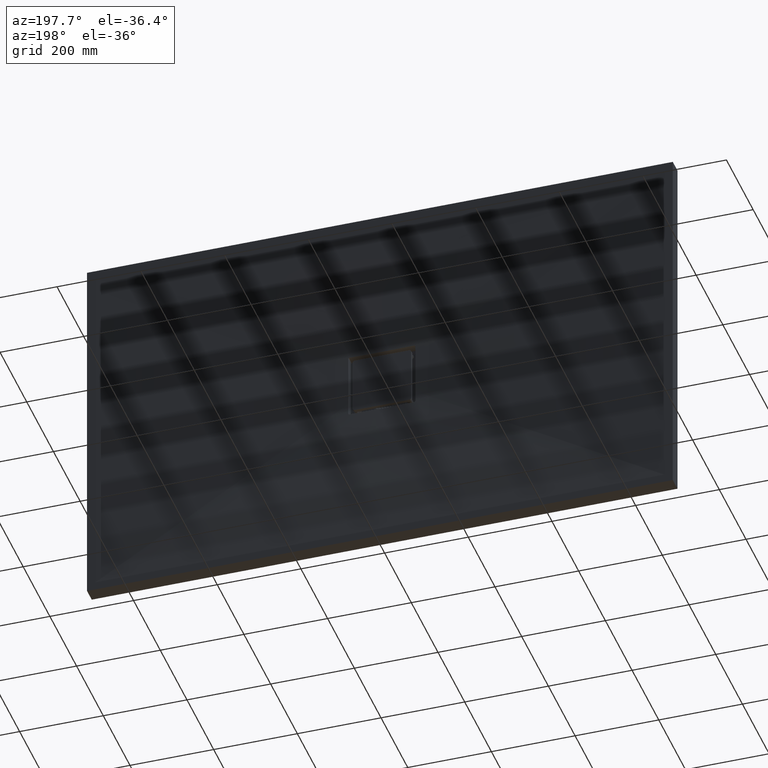
[diagram: clean part render]
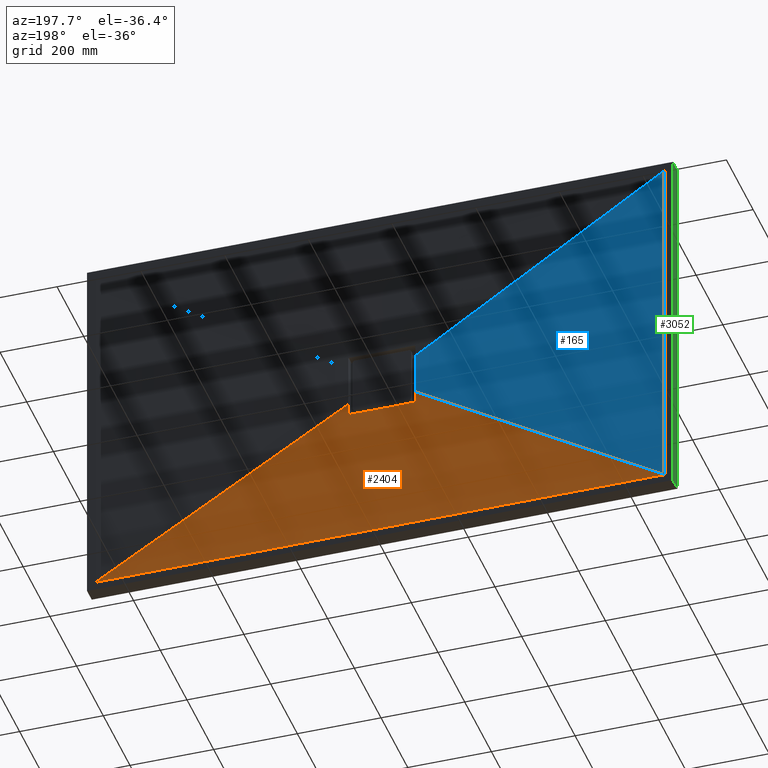
[diagram: same view with three faces highlighted in distinct colors, each labeled with its STEP entity id]
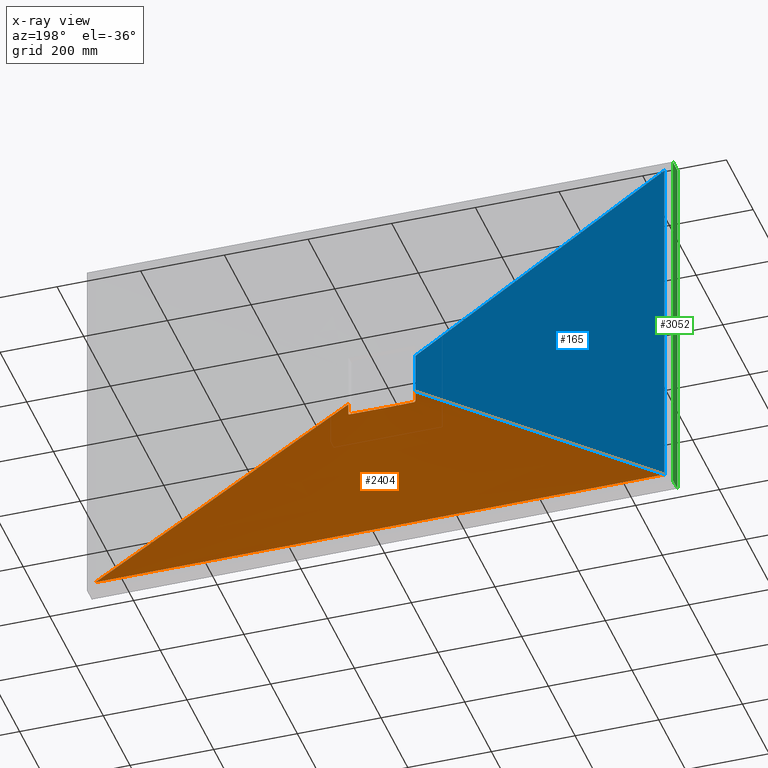
[diagram: x-ray of the same camera — body ghosted, the three highlighted faces saturated]
A machine part, auxiliary view with three faces highlighted in distinct colors.
The next image is the same camera in x-ray (body ghosted, the three faces saturated) — at least one of them is partly hidden behind the body in this view.
Their STEP definitions:

[orange] entity #2404 — the highlighted face is a freeform B-spline surface patch.
#47 = ORIENTED_EDGE ( 'NONE', *, *, #630, .T. ) ;
#60 = CARTESIAN_POINT ( 'NONE',  ( 679.9999999999997700, 35.00000000000002800, -429.9999999999998900 ) ) ;
#66 = CARTESIAN_POINT ( 'NONE',  ( 283.3333333333332000, 35.00000000000002800, -429.9999999999998300 ) ) ;
#79 = CARTESIAN_POINT ( 'NONE',  ( -79.48919422958657300, 20.84295492016255100, -79.02307756777966600 ) ) ;
#108 = CARTESIAN_POINT ( 'NONE',  ( -566.6666666666664000, 35.00000000000002800, -429.9999999999998900 ) ) ;
#113 = CARTESIAN_POINT ( 'NONE',  ( 679.9999999999997700, 35.00000000000002800, -429.9999999999998900 ) ) ;
#128 = CARTESIAN_POINT ( 'NONE',  ( -43.89000487333216700, 20.00000000000001800, -66.97251100088675500 ) ) ;
#139 = CARTESIAN_POINT ( 'NONE',  ( 141.6666666666674800, 35.00000000000002800, -429.9999999999997700 ) ) ;
#153 = CARTESIAN_POINT ( 'NONE',  ( -623.3333333333330300, 35.00000000000002800, -429.9999999999998900 ) ) ;
#166 = LINE ( 'NONE', #2088, #1132 ) ;
#206 = CARTESIAN_POINT ( 'NONE',  ( 566.6666666666664000, 35.00000000000002800, -429.9999999999998300 ) ) ;
#227 = CARTESIAN_POINT ( 'NONE',  ( -66.10973209239023200, 20.00000000000001800, -45.13801686234509000 ) ) ;
#281 = CARTESIAN_POINT ( 'NONE',  ( -80.00000000000008500, 20.81682806805024200, -77.66503442149991100 ) ) ;
#308 = B_SPLINE_CURVE_WITH_KNOTS ( 'NONE', 3,
 ( #1661, #1679, #1619, #1593 ),
 .UNSPECIFIED., .F., .F.,
 ( 4, 4 ),
 ( 0.0000000000000000000, 0.02691658761401903600 ),
 .UNSPECIFIED. ) ;
#340 = EDGE_LOOP ( 'NONE', ( #2229, #2402, #3000, #1957, #2922, #3139, #1953, #47 ) ) ;
#388 = CARTESIAN_POINT ( 'NONE',  ( 481.6666666666673700, 35.00000000000002800, -429.9999999999998900 ) ) ;
#437 = CARTESIAN_POINT ( 'NONE',  ( 46.65745748710925500, 20.00000000000001800, -65.06811537455669700 ) ) ;
#447 = CARTESIAN_POINT ( 'NONE',  ( -80.00000000000007100, 20.81287030221268400, -77.49999999999990100 ) ) ;
#449 = VECTOR ( 'NONE', #1660, 1000.000000000000000 ) ;
#459 = CARTESIAN_POINT ( 'NONE',  ( -79.15327080304696500, 20.84731717523449700, -79.38235719992643200 ) ) ;
#464 = B_SPLINE_CURVE_WITH_KNOTS ( 'NONE', 3,
 ( #1742, #1609, #1674, #1746, #1762, #1792, #1759, #1214, #1290, #1796, #1460, #1506, #1525, #1381 ),
 .UNSPECIFIED., .F., .F.,
 ( 4, 2, 2, 2, 2, 2, 4 ),
 ( 0.0000000000000000000, 0.01937632887573278700, 0.03875265775146554500, 0.07750531550293107700, 0.1162579732543966000, 0.1356343021301293600, 0.1550106310058621500 ),
 .UNSPECIFIED. ) ;
#486 = CARTESIAN_POINT ( 'NONE',  ( -80.00000000000007100, 20.59776308194662800, -68.53026881474983200 ) ) ;
#530 = CARTESIAN_POINT ( 'NONE',  ( -80.00000000000007100, 20.30335170747321500, -50.58823529411748900 ) ) ;
#553 = CARTESIAN_POINT ( 'NONE',  ( -79.87241578129460600, 20.83057128014282400, -78.30527190500328100 ) ) ;
#557 = CARTESIAN_POINT ( 'NONE',  ( 58.68366332307850500, 20.00000000000001800, -54.46160890534357400 ) ) ;
#584 = VERTEX_POINT ( 'NONE', #1197 ) ;
#616 = FACE_OUTER_BOUND ( 'NONE', #340, .T. ) ;
#630 = EDGE_CURVE ( 'NONE', #2658, #1859, #738, .T. ) ;
#641 = CARTESIAN_POINT ( 'NONE',  ( 18.15272978704030000, 20.00000000000001800, -77.99657177433128700 ) ) ;
#671 = CARTESIAN_POINT ( 'NONE',  ( -80.00000000000007100, 20.42740913172034600, -59.55969031890859400 ) ) ;
#738 = LINE ( 'NONE', #113, #449 ) ;
#811 = CARTESIAN_POINT ( 'NONE',  ( 538.3333333333339400, 35.00000000000002800, -429.9999999999998300 ) ) ;
#876 = CARTESIAN_POINT ( 'NONE',  ( -79.92041001741334600, 20.82737132807439900, -78.14661237938496200 ) ) ;
#947 = CARTESIAN_POINT ( 'NONE',  ( -56.66666666666664300, 35.00000000000002800, -429.9999999999998300 ) ) ;
#1020 = CARTESIAN_POINT ( 'NONE',  ( -51.83203333428831900, 20.00000000000001800, -61.02637379028252700 ) ) ;
#1077 = CARTESIAN_POINT ( 'NONE',  ( -198.3333333333332600, 35.00000000000002800, -429.9999999999998300 ) ) ;
#1100 = CARTESIAN_POINT ( 'NONE',  ( -651.6666666666664000, 35.00000000000002800, -429.9999999999998900 ) ) ;
#1117 = CARTESIAN_POINT ( 'NONE',  ( -28.33333333333243300, 35.00000000000002800, -429.9999999999997700 ) ) ;
#1132 = VECTOR ( 'NONE', #2108, 1000.000000000000100 ) ;
#1152 = CARTESIAN_POINT ( 'NONE',  ( -453.3333333333331400, 35.00000000000002800, -429.9999999999998300 ) ) ;
#1182 = CARTESIAN_POINT ( 'NONE',  ( 311.6666666666674200, 35.00000000000002800, -429.9999999999998300 ) ) ;
#1187 = CARTESIAN_POINT ( 'NONE',  ( -80.00000000000007100, 20.81287030221268400, -77.49999999999990100 ) ) ;
#1197 = CARTESIAN_POINT ( 'NONE',  ( 80.00000000000007100, 20.81287030221268400, -77.49999999999990100 ) ) ;
#1204 = CARTESIAN_POINT ( 'NONE',  ( 28.46261196971156000, 20.00000000000001800, -74.84839874186622000 ) ) ;
#1211 = CARTESIAN_POINT ( 'NONE',  ( -396.6666666666665200, 35.00000000000002800, -429.9999999999998300 ) ) ;
#1214 = CARTESIAN_POINT ( 'NONE',  ( 12.91782198656805400, 20.00000000949317400, -79.99999999999998600 ) ) ;
#1215 = CARTESIAN_POINT ( 'NONE',  ( -60.72100163076399300, 20.00000000000001800, -52.17125305750225600 ) ) ;
#1229 = B_SPLINE_CURVE_WITH_KNOTS ( 'NONE', 3,
 ( #3021, #281, #1548, #876, #553, #1905, #1899, #79, #1443, #459, #3210, #1259, #3166, #2405, #2006, #1542 ),
 .UNSPECIFIED., .F., .F.,
 ( 4, 2, 2, 2, 2, 2, 2, 4 ),
 ( 0.0000000000000000000, 0.0004882185418749784900, 0.0009764370837499569800, 0.001464655625624935600, 0.001952874167499914000, 0.002441092709374892300, 0.002929311251249871100, 0.003905748334999827900 ),
 .UNSPECIFIED. ) ;
#1244 = LINE ( 'NONE', #1824, #2042 ) ;
#1255 = CARTESIAN_POINT ( 'NONE',  ( -368.3333333333332000, 35.00000000000002800, -429.9999999999998300 ) ) ;
#1259 = CARTESIAN_POINT ( 'NONE',  ( -78.75452147228800500, 20.84909415750816900, -79.66867825235011900 ) ) ;
#1268 = EDGE_CURVE ( 'NONE', #1384, #2705, #464, .T. ) ;
#1290 = CARTESIAN_POINT ( 'NONE',  ( 25.83446700601050600, 20.14544468636011100, -79.99999999999985800 ) ) ;
#1381 = CARTESIAN_POINT ( 'NONE',  ( 77.50000000000056800, 20.84062390381880200, -79.99999999999984400 ) ) ;
#1383 = CARTESIAN_POINT ( 'NONE',  ( 80.00000000000007100, 20.30335170747321500, -50.58823529411748900 ) ) ;
#1384 = VERTEX_POINT ( 'NONE', #1915 ) ;
#1396 = CARTESIAN_POINT ( 'NONE',  ( 56.66666666666664300, 35.00000000000002800, -429.9999999999997700 ) ) ;
#1401 = CARTESIAN_POINT ( 'NONE',  ( 25.09192591554843000, 20.00000000000001800, -76.04855068387783500 ) ) ;
#1409 = EDGE_CURVE ( 'NONE', #1528, #1859, #1244, .T. ) ;
#1443 = CARTESIAN_POINT ( 'NONE',  ( -79.38371044993434100, 20.84470777932662200, -79.15172876621149100 ) ) ;
#1460 = CARTESIAN_POINT ( 'NONE',  ( 51.66731476949390600, 20.48706198492978500, -79.99999999999982900 ) ) ;
#1463 = CARTESIAN_POINT ( 'NONE',  ( 113.3333333333332900, 35.00000000000002800, -429.9999999999997700 ) ) ;
#1474 = CARTESIAN_POINT ( 'NONE',  ( -679.9999999999997700, 35.00000000000002800, -429.9999999999998900 ) ) ;
#1477 = CARTESIAN_POINT ( 'NONE',  ( -7.343945603555113200, 20.00000000000001800, -79.74599369370716300 ) ) ;
#1506 = CARTESIAN_POINT ( 'NONE',  ( 64.58363601906127400, 20.66541311807115000, -79.99999999999982900 ) ) ;
#1525 = CARTESIAN_POINT ( 'NONE',  ( 71.04180104150121600, 20.75426549895516000, -79.99999999999995700 ) ) ;
#1528 = VERTEX_POINT ( 'NONE', #1848 ) ;
#1542 = CARTESIAN_POINT ( 'NONE',  ( -77.49999999999968700, 20.84062390381880200, -79.99999999999984400 ) ) ;
#1548 = CARTESIAN_POINT ( 'NONE',  ( -79.98381852767472800, 20.82051468157961000, -77.82731902350575100 ) ) ;
#1593 = CARTESIAN_POINT ( 'NONE',  ( 80.00000000000007100, 20.30335170747321500, -50.58823529411748900 ) ) ;
#1609 = CARTESIAN_POINT ( 'NONE',  ( -71.04180089131530500, 20.75426549694690000, -79.99999999999988600 ) ) ;
#1619 = CARTESIAN_POINT ( 'NONE',  ( 80.00000000000007100, 20.42740913172034600, -59.55969031890860800 ) ) ;
#1660 = DIRECTION ( 'NONE',  ( -1.000000000000000000, 0.0000000000000000000, 0.0000000000000000000 ) ) ;
#1661 = CARTESIAN_POINT ( 'NONE',  ( 80.00000000000007100, 20.81287030221268400, -77.49999999999990100 ) ) ;
#1674 = CARTESIAN_POINT ( 'NONE',  ( -64.58363571918916100, 20.66541311393526600, -79.99999999999985800 ) ) ;
#1679 = CARTESIAN_POINT ( 'NONE',  ( 80.00000000000007100, 20.59776308194662100, -68.53026881474981700 ) ) ;
#1706 = CARTESIAN_POINT ( 'NONE',  ( -311.6666666666665200, 35.00000000000002800, -429.9999999999998300 ) ) ;
#1720 = CARTESIAN_POINT ( 'NONE',  ( -46.65745748710925500, 20.00000000000001800, -65.06811537455669700 ) ) ;
#1728 = CARTESIAN_POINT ( 'NONE',  ( 79.93368845746245200, 20.82781323709821200, -78.15807855619458200 ) ) ;
#1737 = B_SPLINE_SURFACE_WITH_KNOTS ( 'NONE', 3, 1, ( 
 ( #3060, #2592 ),
 ( #1100, #227 ),
 ( #153, #1738 ),
 ( #108, #1215 ),
 ( #1897, #2049 ),
 ( #2536, #2552 ),
 ( #1152, #1020 ),
 ( #1211, #1720 ),
 ( #1255, #128 ),
 ( #1706, #2853 ),
 ( #1917, #2790 ),
 ( #1910, #2727 ),
 ( #1077, #2813 ),
 ( #2231, #2545 ),
 ( #1954, #2883 ),
 ( #947, #1477 ),
 ( #1117, #2912 ),
 ( #2976, #2393 ),
 ( #1396, #3016 ),
 ( #1463, #3041 ),
 ( #139, #641 ),
 ( #2807, #1401 ),
 ( #3085, #1204 ),
 ( #66, #2372 ),
 ( #1182, #2528 ),
 ( #2439, #3011 ),
 ( #3186, #437 ),
 ( #3127, #3157 ),
 ( #388, #1946 ),
 ( #811, #557 ),
 ( #206, #2802 ),
 ( #3197, #1941 ),
 ( #2207, #1888 ),
 ( #1929, #3170 ) ),
 .UNSPECIFIED., .F., .F., .F.,
 ( 4, 2, 2, 2, 2, 2, 2, 2, 2, 2, 2, 2, 2, 2, 2, 2, 4 ),
 ( 2, 2 ),
 ( 0.0000000000000000000, 0.06250000000000009700, 0.1250000000000001100, 0.1875000000000001100, 0.2500000000000001100, 0.3125000000000001700, 0.3750000000000002200, 0.4375000000000002200, 0.5000000000000000000, 0.5625000000000002200, 0.6250000000000002200, 0.6875000000000002200, 0.7500000000000001100, 0.8125000000000001100, 0.8750000000000001100, 0.9375000000000001100, 1.000000000000000000 ),
 ( 0.0000000000000000000, 1.000000000000000000 ),
 .UNSPECIFIED. ) ;
#1738 = CARTESIAN_POINT ( 'NONE',  ( -64.43395709204224900, 20.00000000000001800, -47.50941862508928200 ) ) ;
#1742 = CARTESIAN_POINT ( 'NONE',  ( -77.49999999999968700, 20.84062390381880200, -79.99999999999984400 ) ) ;
#1746 = CARTESIAN_POINT ( 'NONE',  ( -51.66731417037632900, 20.48706197665226700, -79.99999999999984400 ) ) ;
#1750 = CARTESIAN_POINT ( 'NONE',  ( 80.00000000000007100, 20.81287030221268400, -77.49999999999990100 ) ) ;
#1757 = EDGE_CURVE ( 'NONE', #2598, #1384, #1229, .T. ) ;
#1759 = CARTESIAN_POINT ( 'NONE',  ( -12.91781925574583800, 19.99999999050686100, -79.99999999999998600 ) ) ;
#1762 = CARTESIAN_POINT ( 'NONE',  ( -45.20916125379663000, 20.39730730491634600, -79.99999999999985800 ) ) ;
#1792 = CARTESIAN_POINT ( 'NONE',  ( -25.83446584992425300, 20.14544467251844800, -79.99999999999987200 ) ) ;
#1796 = CARTESIAN_POINT ( 'NONE',  ( 45.20916202468496400, 20.39730731553102000, -79.99999999999987200 ) ) ;
#1824 = CARTESIAN_POINT ( 'NONE',  ( -373.8077369458299000, 27.49999999999996800, -236.3784218922158100 ) ) ;
#1825 = CARTESIAN_POINT ( 'NONE',  ( 80.00000000000005700, 20.82078581240967100, -77.83006794738592800 ) ) ;
#1848 = CARTESIAN_POINT ( 'NONE',  ( -80.00000000000007100, 20.30335170747321500, -50.58823529411748900 ) ) ;
#1856 = CARTESIAN_POINT ( 'NONE',  ( 79.74650520150136400, 20.83626693639848400, -78.60891438044446000 ) ) ;
#1859 = VERTEX_POINT ( 'NONE', #1474 ) ;
#1886 = CARTESIAN_POINT ( 'NONE',  ( 77.50000000000056800, 20.84062390381880200, -79.99999999999984400 ) ) ;
#1888 = CARTESIAN_POINT ( 'NONE',  ( 66.10973209239112700, 20.00000000000001800, -45.13801686234509000 ) ) ;
#1897 = CARTESIAN_POINT ( 'NONE',  ( -538.3333333333331400, 35.00000000000002800, -429.9999999999998900 ) ) ;
#1899 = CARTESIAN_POINT ( 'NONE',  ( -79.67039703718408800, 20.83872582582131700, -78.75141346543685500 ) ) ;
#1905 = CARTESIAN_POINT ( 'NONE',  ( -79.74709165877790400, 20.83624952186478700, -78.60788020894594300 ) ) ;
#1910 = CARTESIAN_POINT ( 'NONE',  ( -226.6666666666665700, 35.00000000000002800, -429.9999999999998300 ) ) ;
#1915 = CARTESIAN_POINT ( 'NONE',  ( -77.49999999999968700, 20.84062390381880200, -79.99999999999984400 ) ) ;
#1916 = CARTESIAN_POINT ( 'NONE',  ( 79.66880160433520100, 20.83877514461999800, -78.75430790600145800 ) ) ;
#1917 = CARTESIAN_POINT ( 'NONE',  ( -283.3333333333332000, 35.00000000000002800, -429.9999999999998300 ) ) ;
#1920 = CARTESIAN_POINT ( 'NONE',  ( 79.15192373540325800, 20.84732840818741200, -79.38353922780618200 ) ) ;
#1929 = CARTESIAN_POINT ( 'NONE',  ( 679.9999999999997700, 35.00000000000002800, -429.9999999999998900 ) ) ;
#1941 = CARTESIAN_POINT ( 'NONE',  ( 64.43395709204224900, 20.00000000000001800, -47.50941862508928200 ) ) ;
#1946 = CARTESIAN_POINT ( 'NONE',  ( 54.23925067209722800, 20.00000000000001800, -58.88924241408033600 ) ) ;
#1953 = ORIENTED_EDGE ( 'NONE', *, *, #2991, .F. ) ;
#1954 = CARTESIAN_POINT ( 'NONE',  ( -113.3333333333332900, 35.00000000000002800, -429.9999999999998300 ) ) ;
#1957 = ORIENTED_EDGE ( 'NONE', *, *, #1268, .T. ) ;
#2006 = CARTESIAN_POINT ( 'NONE',  ( -77.83013657916528400, 20.84503845786817100, -79.99999999999984400 ) ) ;
#2021 = CARTESIAN_POINT ( 'NONE',  ( 79.38252454324180000, 20.84472518470886400, -79.15307997216284300 ) ) ;
#2026 = VERTEX_POINT ( 'NONE', #1383 ) ;
#2039 = CARTESIAN_POINT ( 'NONE',  ( 77.66506747637450300, 20.84283116996933700, -79.99999999999982900 ) ) ;
#2042 = VECTOR ( 'NONE', #2400, 1000.000000000000100 ) ;
#2049 = CARTESIAN_POINT ( 'NONE',  ( -58.68366332307761700, 20.00000000000001800, -54.46160890534357400 ) ) ;
#2088 = CARTESIAN_POINT ( 'NONE',  ( 373.8077369458299000, 27.49999999999996800, -236.3784218922158100 ) ) ;
#2108 = DIRECTION ( 'NONE',  ( -0.8450123593337416400, -0.02069808241327720700, 0.5343460507551606200 ) ) ;
#2132 = CARTESIAN_POINT ( 'NONE',  ( 79.48601169161703700, 20.84301679404178400, -79.02733306216583700 ) ) ;
#2177 = CARTESIAN_POINT ( 'NONE',  ( 79.02328178537072700, 20.84822255075896200, -79.48903933094345600 ) ) ;
#2207 = CARTESIAN_POINT ( 'NONE',  ( 651.6666666666673100, 35.00000000000002800, -429.9999999999998900 ) ) ;
#2212 = CARTESIAN_POINT ( 'NONE',  ( 78.75160487578435200, 20.84909531358593400, -79.67028802065416900 ) ) ;
#2229 = ORIENTED_EDGE ( 'NONE', *, *, #1409, .F. ) ;
#2231 = CARTESIAN_POINT ( 'NONE',  ( -141.6666666666666000, 35.00000000000002800, -429.9999999999998300 ) ) ;
#2234 = CARTESIAN_POINT ( 'NONE',  ( 78.30542434564283400, 20.84818129650704000, -79.87236544511762300 ) ) ;
#2247 = CARTESIAN_POINT ( 'NONE',  ( 78.60806140050850400, 20.84909084585775600, -79.74700380828466000 ) ) ;
#2282 = CARTESIAN_POINT ( 'NONE',  ( 78.14673507595084300, 20.84726584615351900, -79.92037932601780900 ) ) ;
#2299 = CARTESIAN_POINT ( 'NONE',  ( 77.50000000000056800, 20.84062390381880200, -79.99999999999984400 ) ) ;
#2318 = CARTESIAN_POINT ( 'NONE',  ( 77.82738316521566400, 20.84459219355479200, -79.98381211113337500 ) ) ;
#2372 = CARTESIAN_POINT ( 'NONE',  ( 34.92978578071692700, 20.00000000000001800, -72.05770701092984600 ) ) ;
#2393 = CARTESIAN_POINT ( 'NONE',  ( 3.672054543338632000, 20.00000000000001800, -79.99999999999995700 ) ) ;
#2400 = DIRECTION ( 'NONE',  ( -0.8450123593337419700, 0.02069808241327719000, -0.5343460507551600600 ) ) ;
#2402 = ORIENTED_EDGE ( 'NONE', *, *, #3253, .T. ) ;
#2404 = ADVANCED_FACE ( 'NONE', ( #616 ), #1737, .F. ) ;
#2405 = CARTESIAN_POINT ( 'NONE',  ( -78.15821044358027300, 20.84774660378795400, -79.93365907988736300 ) ) ;
#2439 = CARTESIAN_POINT ( 'NONE',  ( 368.3333333333340500, 35.00000000000002800, -429.9999999999998300 ) ) ;
#2476 = B_SPLINE_CURVE_WITH_KNOTS ( 'NONE', 3,
 ( #2299, #2039, #2318, #2282, #2234, #2247, #2212, #2177, #1920, #2021, #2132, #1916, #1856, #1728, #1825, #1750 ),
 .UNSPECIFIED., .F., .F.,
 ( 4, 2, 2, 2, 2, 2, 2, 4 ),
 ( 0.0000000000000000000, 0.0004882184869465692800, 0.0009764369738931385700, 0.001464655460839707800, 0.001952873947786277100, 0.002441092434732846700, 0.002929310921679415600, 0.003905747895572593300 ),
 .UNSPECIFIED. ) ;
#2528 = CARTESIAN_POINT ( 'NONE',  ( 38.02617390689455600, 20.00000000000001800, -70.46743826440449300 ) ) ;
#2536 = CARTESIAN_POINT ( 'NONE',  ( -481.6666666666664600, 35.00000000000002800, -429.9999999999998300 ) ) ;
#2545 = CARTESIAN_POINT ( 'NONE',  ( -18.15272978703852400, 20.00000000000001800, -77.99657177433128700 ) ) ;
#2552 = CARTESIAN_POINT ( 'NONE',  ( -54.23925067209722800, 20.00000000000001800, -58.88924241408033600 ) ) ;
#2592 = CARTESIAN_POINT ( 'NONE',  ( -67.61547389165923500, 20.00000000000001800, -42.75684378443167300 ) ) ;
#2598 = VERTEX_POINT ( 'NONE', #1187 ) ;
#2658 = VERTEX_POINT ( 'NONE', #60 ) ;
#2705 = VERTEX_POINT ( 'NONE', #1886 ) ;
#2727 = CARTESIAN_POINT ( 'NONE',  ( -28.46261196970978300, 20.00000000000001800, -74.84839874186610600 ) ) ;
#2790 = CARTESIAN_POINT ( 'NONE',  ( -34.92978578071515000, 20.00000000000001800, -72.05770701092984600 ) ) ;
#2802 = CARTESIAN_POINT ( 'NONE',  ( 60.72100163076399300, 20.00000000000001800, -52.17125305750225600 ) ) ;
#2807 = CARTESIAN_POINT ( 'NONE',  ( 198.3333333333341400, 35.00000000000002800, -429.9999999999998300 ) ) ;
#2813 = CARTESIAN_POINT ( 'NONE',  ( -25.09192591554843000, 20.00000000000001800, -76.04855068387783500 ) ) ;
#2849 = B_SPLINE_CURVE_WITH_KNOTS ( 'NONE', 3,
 ( #530, #671, #486, #447 ),
 .UNSPECIFIED., .F., .F.,
 ( 4, 4 ),
 ( 0.0000000000000000000, 0.02691658761401900800 ),
 .UNSPECIFIED. ) ;
#2853 = CARTESIAN_POINT ( 'NONE',  ( -38.02617390689455600, 20.00000000000001800, -70.46743826440449300 ) ) ;
#2883 = CARTESIAN_POINT ( 'NONE',  ( -14.58443099144091100, 20.00000000000001800, -78.74421515184882000 ) ) ;
#2912 = CARTESIAN_POINT ( 'NONE',  ( -3.672054543336855700, 20.00000000000001800, -79.99999999999995700 ) ) ;
#2922 = ORIENTED_EDGE ( 'NONE', *, *, #3189, .T. ) ;
#2976 = CARTESIAN_POINT ( 'NONE',  ( 28.33333333333421000, 35.00000000000002800, -429.9999999999997700 ) ) ;
#2991 = EDGE_CURVE ( 'NONE', #2658, #2026, #166, .T. ) ;
#3000 = ORIENTED_EDGE ( 'NONE', *, *, #1757, .T. ) ;
#3011 = CARTESIAN_POINT ( 'NONE',  ( 43.89000487333305500, 20.00000000000001800, -66.97251100088675500 ) ) ;
#3016 = CARTESIAN_POINT ( 'NONE',  ( 7.343945603555113200, 20.00000000000001800, -79.74599369370716300 ) ) ;
#3021 = CARTESIAN_POINT ( 'NONE',  ( -80.00000000000007100, 20.81287030221268400, -77.49999999999990100 ) ) ;
#3041 = CARTESIAN_POINT ( 'NONE',  ( 14.58443099144091100, 20.00000000000001800, -78.74421515184882000 ) ) ;
#3060 = CARTESIAN_POINT ( 'NONE',  ( -679.9999999999997700, 35.00000000000002800, -429.9999999999998900 ) ) ;
#3066 = EDGE_CURVE ( 'NONE', #584, #2026, #308, .T. ) ;
#3085 = CARTESIAN_POINT ( 'NONE',  ( 226.6666666666665700, 35.00000000000002800, -429.9999999999998300 ) ) ;
#3127 = CARTESIAN_POINT ( 'NONE',  ( 453.3333333333331400, 35.00000000000002800, -429.9999999999998300 ) ) ;
#3139 = ORIENTED_EDGE ( 'NONE', *, *, #3066, .T. ) ;
#3157 = CARTESIAN_POINT ( 'NONE',  ( 51.83203333428920700, 20.00000000000001800, -61.02637379028252700 ) ) ;
#3166 = CARTESIAN_POINT ( 'NONE',  ( -78.60909792968804800, 20.84909004819772700, -79.74641629237545700 ) ) ;
#3170 = CARTESIAN_POINT ( 'NONE',  ( 67.61547389166011600, 20.00000000000001800, -42.75684378443167300 ) ) ;
#3186 = CARTESIAN_POINT ( 'NONE',  ( 396.6666666666665200, 35.00000000000002800, -429.9999999999998300 ) ) ;
#3189 = EDGE_CURVE ( 'NONE', #2705, #584, #2476, .T. ) ;
#3197 = CARTESIAN_POINT ( 'NONE',  ( 623.3333333333330300, 35.00000000000002800, -429.9999999999998900 ) ) ;
#3210 = CARTESIAN_POINT ( 'NONE',  ( -79.02753233121907800, 20.84820046400538000, -79.48585862128406600 ) ) ;
#3253 = EDGE_CURVE ( 'NONE', #1528, #2598, #2849, .T. ) ;

[blue] entity #165 — the highlighted face is a freeform B-spline surface patch.
#5 = CARTESIAN_POINT ( 'NONE',  ( -679.9999999999997700, 35.00000000000002800, -250.8333333333381200 ) ) ;
#17 = CARTESIAN_POINT ( 'NONE',  ( -679.9999999999997700, 35.00000000000002800, 179.1666666666606000 ) ) ;
#131 = CARTESIAN_POINT ( 'NONE',  ( -67.61547389165923500, 20.00000000000001800, -42.75684378443167300 ) ) ;
#162 = CARTESIAN_POINT ( 'NONE',  ( -80.00000000000007100, 20.30335170747321500, 50.58823529411782300 ) ) ;
#165 = ADVANCED_FACE ( 'NONE', ( #1272 ), #505, .F. ) ;
#171 = VERTEX_POINT ( 'NONE', #1342 ) ;
#190 = ORIENTED_EDGE ( 'NONE', *, *, #1627, .T. ) ;
#213 = DIRECTION ( 'NONE',  ( 0.8450123593337419700, -0.02069808241327719000, -0.5343460507551599500 ) ) ;
#274 = CARTESIAN_POINT ( 'NONE',  ( -679.9999999999997700, 35.00000000000002800, -71.66666666667376300 ) ) ;
#286 = CARTESIAN_POINT ( 'NONE',  ( -79.71889910320140900, 20.00000000000001800, 7.723793770695763800 ) ) ;
#316 = CARTESIAN_POINT ( 'NONE',  ( -679.9999999999997700, 35.00000000000002800, 143.3333333333268600 ) ) ;
#321 = CARTESIAN_POINT ( 'NONE',  ( -78.61190927029682000, 20.00000000000001800, 15.32734762825271900 ) ) ;
#325 = CARTESIAN_POINT ( 'NONE',  ( -679.9999999999997700, 35.00000000000002800, 71.66666666665955200 ) ) ;
#353 = CARTESIAN_POINT ( 'NONE',  ( -373.8077369458299000, 27.49999999999996800, 236.3784218922160400 ) ) ;
#359 = CARTESIAN_POINT ( 'NONE',  ( -679.9999999999997700, 35.00000000000002800, -429.9999999999998900 ) ) ;
#377 = CARTESIAN_POINT ( 'NONE',  ( -79.71889910320140900, 20.00000000000001800, -7.723793770695541700 ) ) ;
#460 = CARTESIAN_POINT ( 'NONE',  ( -80.00000000000007100, 20.00000000000001800, -3.862001966524752900 ) ) ;
#482 = CARTESIAN_POINT ( 'NONE',  ( -78.61190927029682000, 20.00000000000001800, -15.32734762825238700 ) ) ;
#505 = B_SPLINE_SURFACE_WITH_KNOTS ( 'NONE', 3, 1, ( 
 ( #1076, #508 ),
 ( #952, #1027 ),
 ( #591, #1308 ),
 ( #873, #915 ),
 ( #1459, #1616 ),
 ( #17, #1645 ),
 ( #316, #321 ),
 ( #325, #286 ),
 ( #762, #1249 ),
 ( #1105, #460 ),
 ( #274, #377 ),
 ( #517, #482 ),
 ( #1551, #743 ),
 ( #5, #1352 ),
 ( #1662, #1621 ),
 ( #1467, #1657 ),
 ( #1536, #583 ),
 ( #1126, #131 ) ),
 .UNSPECIFIED., .F., .F., .F.,
 ( 4, 2, 2, 2, 2, 2, 2, 2, 4 ),
 ( 2, 2 ),
 ( 0.0000000000000000000, 0.1250000000000001100, 0.2500000000000001100, 0.3750000000000001100, 0.5000000000000000000, 0.6250000000000001100, 0.7500000000000001100, 0.8750000000000001100, 1.000000000000000000 ),
 ( 0.0000000000000000000, 1.000000000000000000 ),
 .UNSPECIFIED. ) ;
#508 = CARTESIAN_POINT ( 'NONE',  ( -67.61547389165923500, 20.00000000000001800, 42.75684378443189400 ) ) ;
#509 = VECTOR ( 'NONE', #1523, 1000.000000000000000 ) ;
#517 = CARTESIAN_POINT ( 'NONE',  ( -679.9999999999997700, 35.00000000000002800, -143.3333333333397400 ) ) ;
#583 = CARTESIAN_POINT ( 'NONE',  ( -69.51979440249900200, 20.00000000000001800, -39.74536018589414300 ) ) ;
#591 = CARTESIAN_POINT ( 'NONE',  ( -679.9999999999997700, 35.00000000000002800, 358.3333333333311500 ) ) ;
#640 = LINE ( 'NONE', #359, #509 ) ;
#743 = CARTESIAN_POINT ( 'NONE',  ( -77.78619369133643600, 20.00000000000001800, -19.06873389193086900 ) ) ;
#762 = CARTESIAN_POINT ( 'NONE',  ( -679.9999999999997700, 35.00000000000002800, 35.83333333332616600 ) ) ;
#873 = CARTESIAN_POINT ( 'NONE',  ( -679.9999999999997700, 35.00000000000002800, 286.6666666666626500 ) ) ;
#915 = CARTESIAN_POINT ( 'NONE',  ( -74.31964641322341000, 20.00000000000001800, 29.83607212100969300 ) ) ;
#952 = CARTESIAN_POINT ( 'NONE',  ( -679.9999999999997700, 35.00000000000002800, 394.1666666666654400 ) ) ;
#1027 = CARTESIAN_POINT ( 'NONE',  ( -69.51979440249900200, 20.00000000000001800, 39.74536018589436300 ) ) ;
#1076 = CARTESIAN_POINT ( 'NONE',  ( -679.9999999999997700, 35.00000000000002800, 430.0000000000001700 ) ) ;
#1105 = CARTESIAN_POINT ( 'NONE',  ( -679.9999999999997700, 35.00000000000002800, -35.83333333334049100 ) ) ;
#1126 = CARTESIAN_POINT ( 'NONE',  ( -679.9999999999997700, 35.00000000000002800, -429.9999999999998900 ) ) ;
#1244 = LINE ( 'NONE', #1824, #2042 ) ;
#1249 = CARTESIAN_POINT ( 'NONE',  ( -80.00000000000007100, 20.00000000000001800, 3.862001966524975000 ) ) ;
#1272 = FACE_OUTER_BOUND ( 'NONE', #1744, .T. ) ;
#1308 = CARTESIAN_POINT ( 'NONE',  ( -71.25941182897754800, 20.00000000000001800, 36.54719234612679900 ) ) ;
#1342 = CARTESIAN_POINT ( 'NONE',  ( -679.9999999999997700, 35.00000000000002800, 430.0000000000001700 ) ) ;
#1352 = CARTESIAN_POINT ( 'NONE',  ( -75.63991250722423800, 20.00000000000001800, -26.32322505178419200 ) ) ;
#1371 = EDGE_CURVE ( 'NONE', #2591, #1528, #2805, .T. ) ;
#1409 = EDGE_CURVE ( 'NONE', #1528, #1859, #1244, .T. ) ;
#1459 = CARTESIAN_POINT ( 'NONE',  ( -679.9999999999997700, 35.00000000000002800, 250.8333333333283700 ) ) ;
#1467 = CARTESIAN_POINT ( 'NONE',  ( -679.9999999999997700, 35.00000000000002800, -358.3333333333354700 ) ) ;
#1474 = CARTESIAN_POINT ( 'NONE',  ( -679.9999999999997700, 35.00000000000002800, -429.9999999999998900 ) ) ;
#1523 = DIRECTION ( 'NONE',  ( 0.0000000000000000000, 0.0000000000000000000, 1.000000000000000000 ) ) ;
#1528 = VERTEX_POINT ( 'NONE', #1848 ) ;
#1536 = CARTESIAN_POINT ( 'NONE',  ( -679.9999999999997700, 35.00000000000002800, -394.1666666666677700 ) ) ;
#1551 = CARTESIAN_POINT ( 'NONE',  ( -679.9999999999997700, 35.00000000000002800, -179.1666666666726800 ) ) ;
#1555 = LINE ( 'NONE', #353, #1654 ) ;
#1616 = CARTESIAN_POINT ( 'NONE',  ( -75.63991250722423800, 20.00000000000001800, 26.32322505178441600 ) ) ;
#1621 = CARTESIAN_POINT ( 'NONE',  ( -74.31964641322341000, 20.00000000000001800, -29.83607212100947200 ) ) ;
#1627 = EDGE_CURVE ( 'NONE', #171, #2591, #1555, .T. ) ;
#1645 = CARTESIAN_POINT ( 'NONE',  ( -77.78619369133643600, 20.00000000000001800, 19.06873389193108900 ) ) ;
#1654 = VECTOR ( 'NONE', #213, 1000.000000000000100 ) ;
#1657 = CARTESIAN_POINT ( 'NONE',  ( -71.25941182897754800, 20.00000000000001800, -36.54719234612657900 ) ) ;
#1662 = CARTESIAN_POINT ( 'NONE',  ( -679.9999999999997700, 35.00000000000002800, -286.6666666666707200 ) ) ;
#1744 = EDGE_LOOP ( 'NONE', ( #190, #3287, #3218, #2982 ) ) ;
#1824 = CARTESIAN_POINT ( 'NONE',  ( -373.8077369458299000, 27.49999999999996800, -236.3784218922158100 ) ) ;
#1848 = CARTESIAN_POINT ( 'NONE',  ( -80.00000000000007100, 20.30335170747321500, -50.58823529411748900 ) ) ;
#1859 = VERTEX_POINT ( 'NONE', #1474 ) ;
#1933 = CARTESIAN_POINT ( 'NONE',  ( -80.00000000000007100, 20.30335170747321500, -50.58823529411748900 ) ) ;
#1959 = CARTESIAN_POINT ( 'NONE',  ( -80.00000000000008500, 20.14462250185341200, -33.72576296188271500 ) ) ;
#1966 = CARTESIAN_POINT ( 'NONE',  ( -79.99999999936601100, 19.99999862601047300, -16.86300548435517800 ) ) ;
#1984 = CARTESIAN_POINT ( 'NONE',  ( -80.00000000000007100, 20.30335170747321500, 50.58823529411782300 ) ) ;
#2004 = CARTESIAN_POINT ( 'NONE',  ( -79.99999999936604000, 20.00000137398955900, 16.86352426756475300 ) ) ;
#2020 = CARTESIAN_POINT ( 'NONE',  ( -80.00000000000007100, 20.14462400022219100, 33.72592213989968000 ) ) ;
#2042 = VECTOR ( 'NONE', #2400, 1000.000000000000100 ) ;
#2400 = DIRECTION ( 'NONE',  ( -0.8450123593337419700, 0.02069808241327719000, -0.5343460507551600600 ) ) ;
#2591 = VERTEX_POINT ( 'NONE', #162 ) ;
#2756 = EDGE_CURVE ( 'NONE', #1859, #171, #640, .T. ) ;
#2805 = B_SPLINE_CURVE_WITH_KNOTS ( 'NONE', 3,
 ( #1984, #2020, #2004, #1966, #1959, #1933 ),
 .UNSPECIFIED., .F., .F.,
 ( 4, 2, 4 ),
 ( 0.0000000000000000000, 0.05058888542132982500, 0.1011777708426596500 ),
 .UNSPECIFIED. ) ;
#2982 = ORIENTED_EDGE ( 'NONE', *, *, #2756, .T. ) ;
#3218 = ORIENTED_EDGE ( 'NONE', *, *, #1409, .T. ) ;
#3287 = ORIENTED_EDGE ( 'NONE', *, *, #1371, .T. ) ;

[green] entity #3052 — the highlighted planar face has unit normal (1, 0, 0).
#13 = LINE ( 'NONE', #342, #479 ) ;
#123 = AXIS2_PLACEMENT_3D ( 'NONE', #1725, #1705, #1696 ) ;
#177 = DIRECTION ( 'NONE',  ( 0.0000000000000000000, 0.0000000000000000000, 1.000000000000000000 ) ) ;
#310 = ORIENTED_EDGE ( 'NONE', *, *, #498, .F. ) ;
#342 = CARTESIAN_POINT ( 'NONE',  ( -700.0000000000002300, 35.00000000000002800, -449.9999999999998900 ) ) ;
#392 = VECTOR ( 'NONE', #1949, 1000.000000000000000 ) ;
#411 = LINE ( 'NONE', #1636, #392 ) ;
#422 = CARTESIAN_POINT ( 'NONE',  ( -700.0000000000002300, 0.0000000000000000000, -449.9999999999998900 ) ) ;
#461 = CARTESIAN_POINT ( 'NONE',  ( -700.0000000000002300, 0.0000000000000000000, 450.0000000000001700 ) ) ;
#479 = VECTOR ( 'NONE', #177, 1000.000000000000000 ) ;
#498 = EDGE_CURVE ( 'NONE', #768, #2064, #13, .T. ) ;
#674 = VERTEX_POINT ( 'NONE', #461 ) ;
#768 = VERTEX_POINT ( 'NONE', #1562 ) ;
#850 = EDGE_CURVE ( 'NONE', #768, #1118, #3126, .T. ) ;
#856 = EDGE_CURVE ( 'NONE', #2064, #674, #3006, .T. ) ;
#967 = CARTESIAN_POINT ( 'NONE',  ( -700.0000000000002300, 35.00000000000002800, 450.0000000000001700 ) ) ;
#972 = DIRECTION ( 'NONE',  ( -0.0000000000000000000, -1.000000000000000000, -0.0000000000000000000 ) ) ;
#982 = CARTESIAN_POINT ( 'NONE',  ( -700.0000000000002300, 35.00000000000002800, -449.9999999999998900 ) ) ;
#1118 = VERTEX_POINT ( 'NONE', #422 ) ;
#1427 = DIRECTION ( 'NONE',  ( -0.0000000000000000000, -1.000000000000000000, -0.0000000000000000000 ) ) ;
#1562 = CARTESIAN_POINT ( 'NONE',  ( -700.0000000000002300, 35.00000000000002800, -449.9999999999998900 ) ) ;
#1636 = CARTESIAN_POINT ( 'NONE',  ( -700.0000000000002300, 0.0000000000000000000, -449.9999999999998900 ) ) ;
#1658 = ORIENTED_EDGE ( 'NONE', *, *, #856, .F. ) ;
#1696 = DIRECTION ( 'NONE',  ( 0.0000000000000000000, 0.0000000000000000000, -1.000000000000000000 ) ) ;
#1705 = DIRECTION ( 'NONE',  ( 1.000000000000000000, 0.0000000000000000000, 0.0000000000000000000 ) ) ;
#1725 = CARTESIAN_POINT ( 'NONE',  ( -700.0000000000002300, 35.00000000000002800, -449.9999999999998900 ) ) ;
#1754 = PLANE ( 'NONE',  #123 ) ;
#1949 = DIRECTION ( 'NONE',  ( 0.0000000000000000000, 0.0000000000000000000, 1.000000000000000000 ) ) ;
#2064 = VERTEX_POINT ( 'NONE', #2718 ) ;
#2371 = FACE_OUTER_BOUND ( 'NONE', #2878, .T. ) ;
#2516 = EDGE_CURVE ( 'NONE', #1118, #674, #411, .T. ) ;
#2718 = CARTESIAN_POINT ( 'NONE',  ( -700.0000000000002300, 35.00000000000002800, 450.0000000000001700 ) ) ;
#2878 = EDGE_LOOP ( 'NONE', ( #3089, #1658, #310, #2986 ) ) ;
#2973 = VECTOR ( 'NONE', #1427, 1000.000000000000000 ) ;
#2986 = ORIENTED_EDGE ( 'NONE', *, *, #850, .T. ) ;
#3006 = LINE ( 'NONE', #967, #2973 ) ;
#3052 = ADVANCED_FACE ( 'NONE', ( #2371 ), #1754, .F. ) ;
#3074 = VECTOR ( 'NONE', #972, 1000.000000000000000 ) ;
#3089 = ORIENTED_EDGE ( 'NONE', *, *, #2516, .T. ) ;
#3126 = LINE ( 'NONE', #982, #3074 ) ;